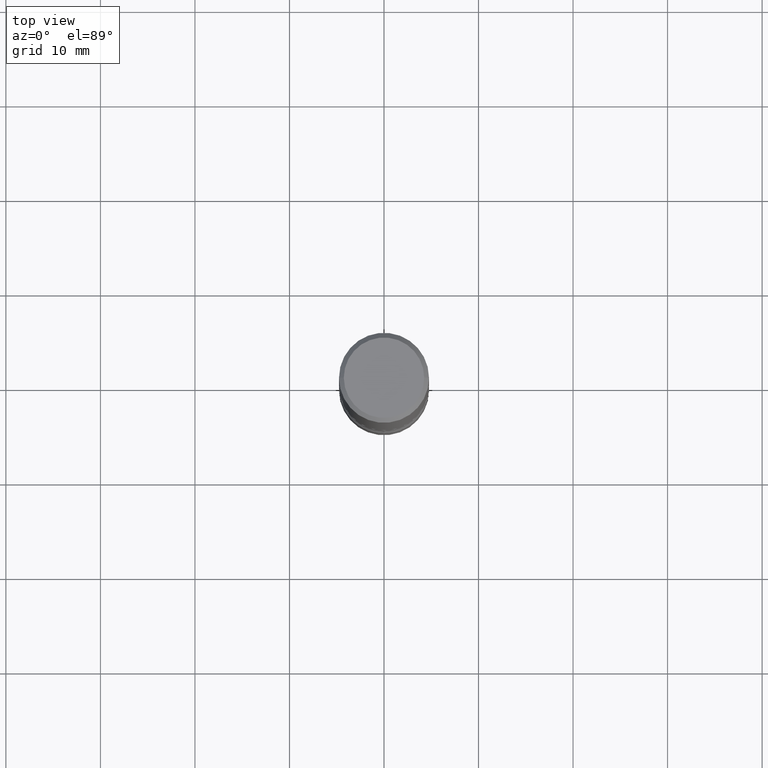
[diagram: clean part render]
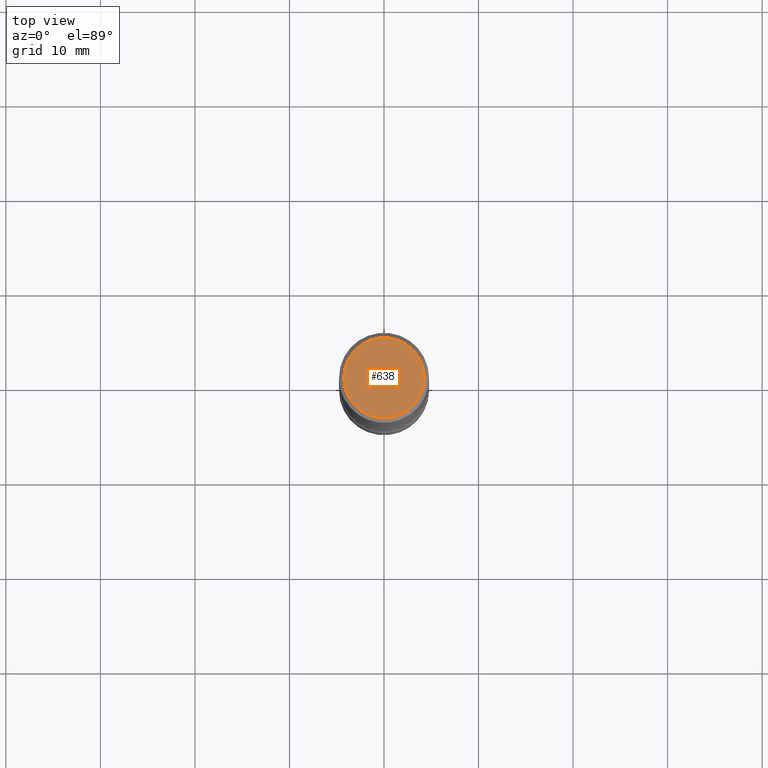
[diagram: same view with one face highlighted and labeled with its STEP entity id]
A machine part, top view. The second image highlights one B-rep face of the part: STEP entity #638.
In plain terms, the highlighted planar face has unit normal (0, -0, -1).
Its self-contained STEP definition (entity closure, byte-faithful):
#95 = DIRECTION ( 'NONE',  ( -1.000000000000000000, 6.982962677686265922E-15, -4.876176775795935793E-29 ) ) ;
#97 = CIRCLE ( 'NONE', #406, 0.1674999999999997047 ) ;
#159 = FACE_OUTER_BOUND ( 'NONE', #694, .T. ) ;
#182 = AXIS2_PLACEMENT_3D ( 'NONE', #233, #551, #95 ) ;
#230 = EDGE_CURVE ( 'NONE', #758, #756, #369, .T. ) ;
#233 = CARTESIAN_POINT ( 'NONE',  ( 1.169646248512447623E-15, 0.1674999999999997047, -5.826888680111756689E-16 ) ) ;
#241 = CARTESIAN_POINT ( 'NONE',  ( -1.043851414335219820E-46, 1.490343170380447200E-32, 4.268512490100411279E-18 ) ) ;
#257 = DIRECTION ( 'NONE',  ( 1.000000000000000000, -6.982962677686266711E-15, 4.875936752492901611E-29 ) ) ;
#271 = AXIS2_PLACEMENT_3D ( 'NONE', #241, #552, #425 ) ;
#317 = CARTESIAN_POINT ( 'NONE',  ( -0.1674999999999997047, 1.204561061900878878E-15, 4.268512490092109750E-18 ) ) ;
#322 = CARTESIAN_POINT ( 'NONE',  ( -1.043851414335219820E-46, 1.490343170380447200E-32, 4.268512490100411279E-18 ) ) ;
#369 = CIRCLE ( 'NONE', #271, 0.1674999999999997047 ) ;
#406 = AXIS2_PLACEMENT_3D ( 'NONE', #322, #698, #257 ) ;
#425 = DIRECTION ( 'NONE',  ( 1.000000000000000000, -6.982962677686266711E-15, 4.875936752492901611E-29 ) ) ;
#426 = ORIENTED_EDGE ( 'NONE', *, *, #230, .T. ) ;
#458 = EDGE_CURVE ( 'NONE', #756, #758, #97, .T. ) ;
#551 = DIRECTION ( 'NONE',  ( 2.438088387897960049E-29, -3.491481338843145188E-15, -1.000000000000000000 ) ) ;
#552 = DIRECTION ( 'NONE',  ( -2.445468806185136597E-29, 3.491481338843145583E-15, 1.000000000000000000 ) ) ;
#607 = PLANE ( 'NONE',  #182 ) ;
#638 = ADVANCED_FACE ( 'NONE', ( #159 ), #607, .F. ) ;
#692 = CARTESIAN_POINT ( 'NONE',  ( 0.1674999999999997047, -1.252653207992876711E-15, 4.268512490108880748E-18 ) ) ;
#694 = EDGE_LOOP ( 'NONE', ( #426, #730 ) ) ;
#698 = DIRECTION ( 'NONE',  ( -2.445468806185136597E-29, 3.491481338843145583E-15, 1.000000000000000000 ) ) ;
#730 = ORIENTED_EDGE ( 'NONE', *, *, #458, .T. ) ;
#756 = VERTEX_POINT ( 'NONE', #692 ) ;
#758 = VERTEX_POINT ( 'NONE', #317 ) ;